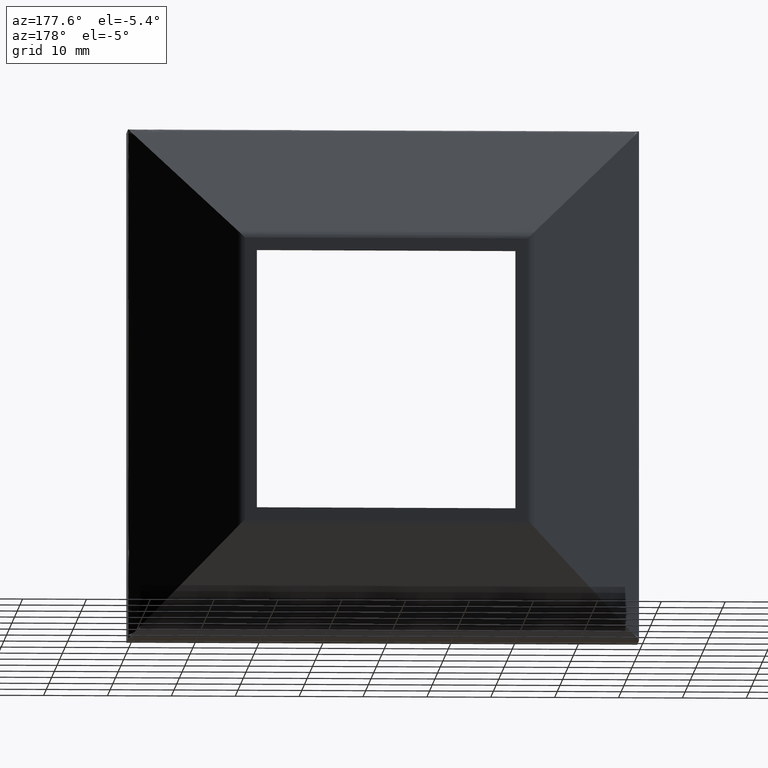
[diagram: clean part render]
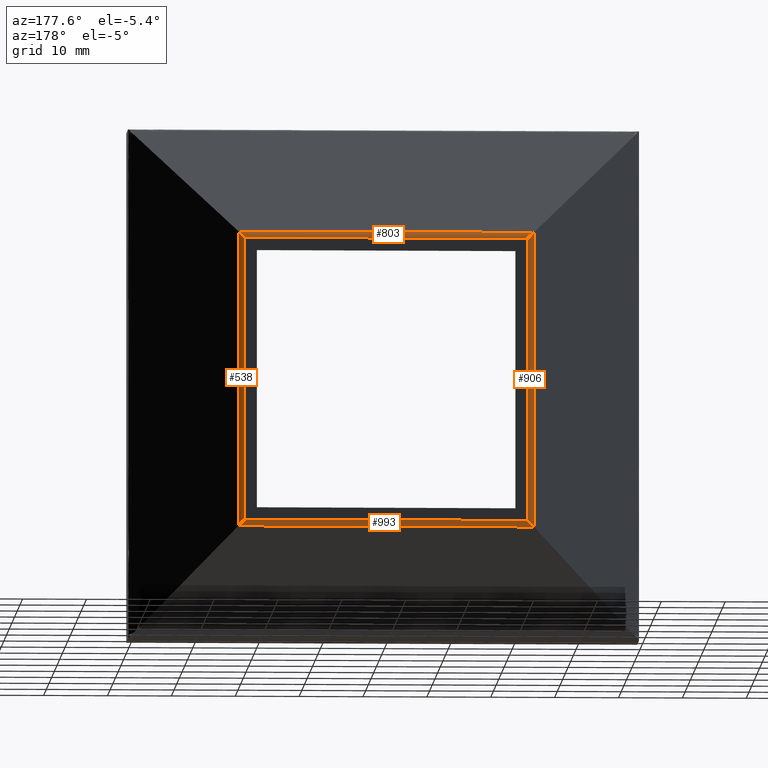
[diagram: same view with one multi-face feature highlighted, each face labeled with its STEP entity id]
A machine part, auxiliary view. The highlighted faces form ONE feature: a constant-radius fillet chain: 4 tangent blend faces with common blend radius 2 mm. The faces share edges in the B-rep.
Their STEP definitions:
[1] entity #906 (Cylinder):
#14 = CARTESIAN_POINT ( 'NONE',  ( -22.83778834245687500, 16.90860752037181000, -22.83778834245686800 ) ) ;
#20 = ORIENTED_EDGE ( 'NONE', *, *, #1084, .F. ) ;
#62 = VECTOR ( 'NONE', #79, 1000.000000000000000 ) ;
#79 = DIRECTION ( 'NONE',  ( -0.0000000000000000000, -0.0000000000000000000, 1.000000000000000000 ) ) ;
#81 = CARTESIAN_POINT ( 'NONE',  ( -23.14359353944890400, 16.73205080756887900, 23.14359353944888300 ) ) ;
#96 = FACE_OUTER_BOUND ( 'NONE', #644, .T. ) ;
#119 = CARTESIAN_POINT ( 'NONE',  ( -22.14359353944891100, 17.00000000000000000, 22.14359353944889000 ) ) ;
#131 = VERTEX_POINT ( 'NONE', #974 ) ;
#160 = CARTESIAN_POINT ( 'NONE',  ( -23.14359353944890400, 16.73205080756887900, -23.14359353944889700 ) ) ;
#169 = CARTESIAN_POINT ( 'NONE',  ( -22.83778834245687500, 16.90860752037181000, 22.83778834245685700 ) ) ;
#189 = CARTESIAN_POINT ( 'NONE',  ( -22.49670696505477700, 17.00000000000000000, -22.49670696505476600 ) ) ;
#194 = AXIS2_PLACEMENT_3D ( 'NONE', #681, #506, #1111 ) ;
#196 = VERTEX_POINT ( 'NONE', #684 ) ;
#199 = EDGE_CURVE ( 'NONE', #996, #131, #771, .T. ) ;
#235 = CARTESIAN_POINT ( 'NONE',  ( -23.14359353944890400, 16.73205080756887900, -23.14359353944889700 ) ) ;
#254 = VECTOR ( 'NONE', #1062, 1000.000000000000000 ) ;
#259 = CARTESIAN_POINT ( 'NONE',  ( -22.14359353944891100, 17.00000000000000000, -22.14359353944890400 ) ) ;
#382 = EDGE_CURVE ( 'NONE', #996, #1076, #442, .T. ) ;
#429 =( BOUNDED_CURVE ( )  B_SPLINE_CURVE ( 3, ( #160, #14, #189, #259 ),
 .UNSPECIFIED., .F., .T. ) 
 B_SPLINE_CURVE_WITH_KNOTS ( ( 4, 4 ),
 ( 4.188790204786394100, 4.712388980384689700 ),
 .UNSPECIFIED. ) 
 CURVE ( )  GEOMETRIC_REPRESENTATION_ITEM ( )  RATIONAL_B_SPLINE_CURVE ( ( 1.000000000000000000, 0.9772838841927123900, 0.9772838841927123900, 1.000000000000000000 ) ) 
 REPRESENTATION_ITEM ( '' )  );
#442 = LINE ( 'NONE', #799, #254 ) ;
#506 = DIRECTION ( 'NONE',  ( 0.0000000000000000000, 0.0000000000000000000, 1.000000000000000000 ) ) ;
#583 = CARTESIAN_POINT ( 'NONE',  ( -22.14359353944891100, 17.00000000000000000, 22.67949192431112200 ) ) ;
#609 = CYLINDRICAL_SURFACE ( 'NONE', #194, 2.000000000000001800 ) ;
#644 = EDGE_LOOP ( 'NONE', ( #1087, #20, #793, #1115 ) ) ;
#681 = CARTESIAN_POINT ( 'NONE',  ( -22.14359353944891100, 15.00000000000000200, 0.0000000000000000000 ) ) ;
#684 = CARTESIAN_POINT ( 'NONE',  ( -22.14359353944891100, 17.00000000000000000, -22.14359353944890400 ) ) ;
#697 = EDGE_CURVE ( 'NONE', #1076, #196, #429, .T. ) ;
#735 = CARTESIAN_POINT ( 'NONE',  ( -23.14359353944890400, 16.73205080756887900, 23.14359353944888300 ) ) ;
#771 =( BOUNDED_CURVE ( )  B_SPLINE_CURVE ( 3, ( #81, #169, #1055, #119 ),
 .UNSPECIFIED., .F., .T. ) 
 B_SPLINE_CURVE_WITH_KNOTS ( ( 4, 4 ),
 ( 1.047197551196601000, 1.570796326794896600 ),
 .UNSPECIFIED. ) 
 CURVE ( )  GEOMETRIC_REPRESENTATION_ITEM ( )  RATIONAL_B_SPLINE_CURVE ( ( 1.000000000000000000, 0.9772838841927123900, 0.9772838841927123900, 1.000000000000000000 ) ) 
 REPRESENTATION_ITEM ( '' )  );
#793 = ORIENTED_EDGE ( 'NONE', *, *, #697, .F. ) ;
#799 = CARTESIAN_POINT ( 'NONE',  ( -23.14359353944890800, 16.73205080756887900, -22.67949192431113700 ) ) ;
#906 = ADVANCED_FACE ( 'NONE', ( #96 ), #609, .T. ) ;
#934 = LINE ( 'NONE', #583, #62 ) ;
#974 = CARTESIAN_POINT ( 'NONE',  ( -22.14359353944891100, 17.00000000000000000, 22.14359353944889000 ) ) ;
#996 = VERTEX_POINT ( 'NONE', #735 ) ;
#1055 = CARTESIAN_POINT ( 'NONE',  ( -22.49670696505477700, 17.00000000000000000, 22.49670696505475200 ) ) ;
#1062 = DIRECTION ( 'NONE',  ( -0.0000000000000000000, -0.0000000000000000000, -1.000000000000000000 ) ) ;
#1076 = VERTEX_POINT ( 'NONE', #235 ) ;
#1084 = EDGE_CURVE ( 'NONE', #196, #131, #934, .T. ) ;
#1087 = ORIENTED_EDGE ( 'NONE', *, *, #199, .T. ) ;
#1111 = DIRECTION ( 'NONE',  ( 1.000000000000000000, 0.0000000000000000000, 0.0000000000000000000 ) ) ;
#1115 = ORIENTED_EDGE ( 'NONE', *, *, #382, .F. ) ;
[2] entity #993 (Cylinder):
#14 = CARTESIAN_POINT ( 'NONE',  ( -22.83778834245687500, 16.90860752037181000, -22.83778834245686800 ) ) ;
#15 = ORIENTED_EDGE ( 'NONE', *, *, #425, .F. ) ;
#85 = CARTESIAN_POINT ( 'NONE',  ( -22.67949192431114400, 17.00000000000000000, -22.14359353944890400 ) ) ;
#86 = EDGE_CURVE ( 'NONE', #175, #461, #749, .T. ) ;
#108 = CARTESIAN_POINT ( 'NONE',  ( 22.14359353944888300, 17.00000000000000000, -22.14359353944890400 ) ) ;
#160 = CARTESIAN_POINT ( 'NONE',  ( -23.14359353944890400, 16.73205080756887900, -23.14359353944889700 ) ) ;
#175 = VERTEX_POINT ( 'NONE', #1098 ) ;
#189 = CARTESIAN_POINT ( 'NONE',  ( -22.49670696505477700, 17.00000000000000000, -22.49670696505476600 ) ) ;
#196 = VERTEX_POINT ( 'NONE', #684 ) ;
#235 = CARTESIAN_POINT ( 'NONE',  ( -23.14359353944890400, 16.73205080756887900, -23.14359353944889700 ) ) ;
#259 = CARTESIAN_POINT ( 'NONE',  ( -22.14359353944891100, 17.00000000000000000, -22.14359353944890400 ) ) ;
#276 = VECTOR ( 'NONE', #342, 1000.000000000000000 ) ;
#310 = ORIENTED_EDGE ( 'NONE', *, *, #86, .T. ) ;
#331 = CARTESIAN_POINT ( 'NONE',  ( 23.14359353944887600, 16.73205080756887900, -23.14359353944889700 ) ) ;
#342 = DIRECTION ( 'NONE',  ( 1.000000000000000000, -0.0000000000000000000, -0.0000000000000000000 ) ) ;
#425 = EDGE_CURVE ( 'NONE', #175, #196, #599, .T. ) ;
#429 =( BOUNDED_CURVE ( )  B_SPLINE_CURVE ( 3, ( #160, #14, #189, #259 ),
 .UNSPECIFIED., .F., .T. ) 
 B_SPLINE_CURVE_WITH_KNOTS ( ( 4, 4 ),
 ( 4.188790204786394100, 4.712388980384689700 ),
 .UNSPECIFIED. ) 
 CURVE ( )  GEOMETRIC_REPRESENTATION_ITEM ( )  RATIONAL_B_SPLINE_CURVE ( ( 1.000000000000000000, 0.9772838841927123900, 0.9772838841927123900, 1.000000000000000000 ) ) 
 REPRESENTATION_ITEM ( '' )  );
#452 = CARTESIAN_POINT ( 'NONE',  ( 22.49670696505474500, 17.00000000000000400, -22.49670696505476600 ) ) ;
#461 = VERTEX_POINT ( 'NONE', #331 ) ;
#500 = EDGE_CURVE ( 'NONE', #1076, #461, #868, .T. ) ;
#593 = CARTESIAN_POINT ( 'NONE',  ( 22.67949192431111500, 16.73205080756887900, -23.14359353944890100 ) ) ;
#599 = LINE ( 'NONE', #85, #815 ) ;
#670 = DIRECTION ( 'NONE',  ( -1.000000000000000000, -0.0000000000000000000, -0.0000000000000000000 ) ) ;
#684 = CARTESIAN_POINT ( 'NONE',  ( -22.14359353944891100, 17.00000000000000000, -22.14359353944890400 ) ) ;
#697 = EDGE_CURVE ( 'NONE', #1076, #196, #429, .T. ) ;
#709 = CARTESIAN_POINT ( 'NONE',  ( 23.14359353944887600, 16.73205080756887900, -23.14359353944889700 ) ) ;
#719 = ORIENTED_EDGE ( 'NONE', *, *, #697, .T. ) ;
#739 = CARTESIAN_POINT ( 'NONE',  ( 0.0000000000000000000, 15.00000000000000200, -22.14359353944890400 ) ) ;
#749 =( BOUNDED_CURVE ( )  B_SPLINE_CURVE ( 3, ( #108, #452, #1056, #709 ),
 .UNSPECIFIED., .F., .T. ) 
 B_SPLINE_CURVE_WITH_KNOTS ( ( 4, 4 ),
 ( 4.712388980384689700, 5.235987755982984400 ),
 .UNSPECIFIED. ) 
 CURVE ( )  GEOMETRIC_REPRESENTATION_ITEM ( )  RATIONAL_B_SPLINE_CURVE ( ( 1.000000000000000000, 0.9772838841927125000, 0.9772838841927125000, 1.000000000000000000 ) ) 
 REPRESENTATION_ITEM ( '' )  );
#810 = DIRECTION ( 'NONE',  ( -1.000000000000000000, 0.0000000000000000000, 0.0000000000000000000 ) ) ;
#815 = VECTOR ( 'NONE', #670, 1000.000000000000000 ) ;
#833 = CYLINDRICAL_SURFACE ( 'NONE', #875, 2.000000000000001800 ) ;
#840 = ORIENTED_EDGE ( 'NONE', *, *, #500, .F. ) ;
#867 = FACE_OUTER_BOUND ( 'NONE', #1037, .T. ) ;
#868 = LINE ( 'NONE', #593, #276 ) ;
#875 = AXIS2_PLACEMENT_3D ( 'NONE', #739, #810, #1080 ) ;
#993 = ADVANCED_FACE ( 'NONE', ( #867 ), #833, .T. ) ;
#1037 = EDGE_LOOP ( 'NONE', ( #310, #840, #719, #15 ) ) ;
#1056 = CARTESIAN_POINT ( 'NONE',  ( 22.83778834245685700, 16.90860752037181000, -22.83778834245687500 ) ) ;
#1076 = VERTEX_POINT ( 'NONE', #235 ) ;
#1080 = DIRECTION ( 'NONE',  ( 0.0000000000000000000, 0.0000000000000000000, 1.000000000000000000 ) ) ;
#1098 = CARTESIAN_POINT ( 'NONE',  ( 22.14359353944888300, 17.00000000000000000, -22.14359353944890400 ) ) ;
[3] entity #538 (Cylinder):
#26 = FACE_OUTER_BOUND ( 'NONE', #399, .T. ) ;
#86 = EDGE_CURVE ( 'NONE', #175, #461, #749, .T. ) ;
#97 = CARTESIAN_POINT ( 'NONE',  ( 22.14359353944888300, 15.00000000000000200, 0.0000000000000000000 ) ) ;
#108 = CARTESIAN_POINT ( 'NONE',  ( 22.14359353944888300, 17.00000000000000000, -22.14359353944890400 ) ) ;
#138 = ORIENTED_EDGE ( 'NONE', *, *, #656, .F. ) ;
#157 = ORIENTED_EDGE ( 'NONE', *, *, #680, .F. ) ;
#164 = CARTESIAN_POINT ( 'NONE',  ( 23.14359353944887900, 16.73205080756887900, 22.67949192431112200 ) ) ;
#175 = VERTEX_POINT ( 'NONE', #1098 ) ;
#185 = DIRECTION ( 'NONE',  ( 0.0000000000000000000, 0.0000000000000000000, -1.000000000000000000 ) ) ;
#222 = CARTESIAN_POINT ( 'NONE',  ( 22.14359353944888300, 17.00000000000000000, 22.14359353944889000 ) ) ;
#241 = ORIENTED_EDGE ( 'NONE', *, *, #1024, .T. ) ;
#267 = DIRECTION ( 'NONE',  ( -1.000000000000000000, 0.0000000000000000000, 0.0000000000000000000 ) ) ;
#331 = CARTESIAN_POINT ( 'NONE',  ( 23.14359353944887600, 16.73205080756887900, -23.14359353944889700 ) ) ;
#399 = EDGE_LOOP ( 'NONE', ( #241, #157, #1026, #138 ) ) ;
#445 = VERTEX_POINT ( 'NONE', #1023 ) ;
#452 = CARTESIAN_POINT ( 'NONE',  ( 22.49670696505474500, 17.00000000000000400, -22.49670696505476600 ) ) ;
#461 = VERTEX_POINT ( 'NONE', #331 ) ;
#468 = CARTESIAN_POINT ( 'NONE',  ( 22.83778834245685700, 16.90860752037181000, 22.83778834245686400 ) ) ;
#470 = CYLINDRICAL_SURFACE ( 'NONE', #821, 2.000000000000001800 ) ;
#488 = CARTESIAN_POINT ( 'NONE',  ( 22.49670696505474500, 17.00000000000000400, 22.49670696505475200 ) ) ;
#509 =( BOUNDED_CURVE ( )  B_SPLINE_CURVE ( 3, ( #222, #488, #468, #911 ),
 .UNSPECIFIED., .F., .F. ) 
 B_SPLINE_CURVE_WITH_KNOTS ( ( 4, 4 ),
 ( 4.712388980384689700, 5.235987755982984400 ),
 .UNSPECIFIED. ) 
 CURVE ( )  GEOMETRIC_REPRESENTATION_ITEM ( )  RATIONAL_B_SPLINE_CURVE ( ( 1.000000000000000000, 0.9772838841927125000, 0.9772838841927125000, 1.000000000000000000 ) ) 
 REPRESENTATION_ITEM ( '' )  );
#538 = ADVANCED_FACE ( 'NONE', ( #26 ), #470, .T. ) ;
#543 = VECTOR ( 'NONE', #671, 1000.000000000000000 ) ;
#656 = EDGE_CURVE ( 'NONE', #903, #175, #774, .T. ) ;
#671 = DIRECTION ( 'NONE',  ( -0.0000000000000000000, -0.0000000000000000000, 1.000000000000000000 ) ) ;
#680 = EDGE_CURVE ( 'NONE', #461, #445, #1003, .T. ) ;
#685 = CARTESIAN_POINT ( 'NONE',  ( 22.14359353944888300, 17.00000000000000000, 22.14359353944889000 ) ) ;
#709 = CARTESIAN_POINT ( 'NONE',  ( 23.14359353944887600, 16.73205080756887900, -23.14359353944889700 ) ) ;
#749 =( BOUNDED_CURVE ( )  B_SPLINE_CURVE ( 3, ( #108, #452, #1056, #709 ),
 .UNSPECIFIED., .F., .T. ) 
 B_SPLINE_CURVE_WITH_KNOTS ( ( 4, 4 ),
 ( 4.712388980384689700, 5.235987755982984400 ),
 .UNSPECIFIED. ) 
 CURVE ( )  GEOMETRIC_REPRESENTATION_ITEM ( )  RATIONAL_B_SPLINE_CURVE ( ( 1.000000000000000000, 0.9772838841927125000, 0.9772838841927125000, 1.000000000000000000 ) ) 
 REPRESENTATION_ITEM ( '' )  );
#774 = LINE ( 'NONE', #1004, #980 ) ;
#821 = AXIS2_PLACEMENT_3D ( 'NONE', #97, #185, #267 ) ;
#903 = VERTEX_POINT ( 'NONE', #685 ) ;
#911 = CARTESIAN_POINT ( 'NONE',  ( 23.14359353944887600, 16.73205080756887900, 23.14359353944888300 ) ) ;
#980 = VECTOR ( 'NONE', #1100, 1000.000000000000000 ) ;
#1003 = LINE ( 'NONE', #164, #543 ) ;
#1004 = CARTESIAN_POINT ( 'NONE',  ( 22.14359353944888300, 17.00000000000000000, -22.67949192431113700 ) ) ;
#1023 = CARTESIAN_POINT ( 'NONE',  ( 23.14359353944887600, 16.73205080756887900, 23.14359353944888300 ) ) ;
#1024 = EDGE_CURVE ( 'NONE', #903, #445, #509, .T. ) ;
#1026 = ORIENTED_EDGE ( 'NONE', *, *, #86, .F. ) ;
#1056 = CARTESIAN_POINT ( 'NONE',  ( 22.83778834245685700, 16.90860752037181000, -22.83778834245687500 ) ) ;
#1098 = CARTESIAN_POINT ( 'NONE',  ( 22.14359353944888300, 17.00000000000000000, -22.14359353944890400 ) ) ;
#1100 = DIRECTION ( 'NONE',  ( -0.0000000000000000000, 0.0000000000000000000, -1.000000000000000000 ) ) ;
[4] entity #803 (Cylinder):
#63 = EDGE_CURVE ( 'NONE', #445, #996, #835, .T. ) ;
#68 = CYLINDRICAL_SURFACE ( 'NONE', #802, 2.000000000000001800 ) ;
#81 = CARTESIAN_POINT ( 'NONE',  ( -23.14359353944890400, 16.73205080756887900, 23.14359353944888300 ) ) ;
#119 = CARTESIAN_POINT ( 'NONE',  ( -22.14359353944891100, 17.00000000000000000, 22.14359353944889000 ) ) ;
#127 = LINE ( 'NONE', #1001, #979 ) ;
#131 = VERTEX_POINT ( 'NONE', #974 ) ;
#137 = ORIENTED_EDGE ( 'NONE', *, *, #1024, .F. ) ;
#169 = CARTESIAN_POINT ( 'NONE',  ( -22.83778834245687500, 16.90860752037181000, 22.83778834245685700 ) ) ;
#199 = EDGE_CURVE ( 'NONE', #996, #131, #771, .T. ) ;
#222 = CARTESIAN_POINT ( 'NONE',  ( 22.14359353944888300, 17.00000000000000000, 22.14359353944889000 ) ) ;
#318 = DIRECTION ( 'NONE',  ( 1.000000000000000000, 0.0000000000000000000, -0.0000000000000000000 ) ) ;
#410 = CARTESIAN_POINT ( 'NONE',  ( 0.0000000000000000000, 15.00000000000000200, 22.14359353944889000 ) ) ;
#440 = FACE_OUTER_BOUND ( 'NONE', #972, .T. ) ;
#445 = VERTEX_POINT ( 'NONE', #1023 ) ;
#458 = VECTOR ( 'NONE', #864, 1000.000000000000000 ) ;
#468 = CARTESIAN_POINT ( 'NONE',  ( 22.83778834245685700, 16.90860752037181000, 22.83778834245686400 ) ) ;
#488 = CARTESIAN_POINT ( 'NONE',  ( 22.49670696505474500, 17.00000000000000400, 22.49670696505475200 ) ) ;
#509 =( BOUNDED_CURVE ( )  B_SPLINE_CURVE ( 3, ( #222, #488, #468, #911 ),
 .UNSPECIFIED., .F., .F. ) 
 B_SPLINE_CURVE_WITH_KNOTS ( ( 4, 4 ),
 ( 4.712388980384689700, 5.235987755982984400 ),
 .UNSPECIFIED. ) 
 CURVE ( )  GEOMETRIC_REPRESENTATION_ITEM ( )  RATIONAL_B_SPLINE_CURVE ( ( 1.000000000000000000, 0.9772838841927125000, 0.9772838841927125000, 1.000000000000000000 ) ) 
 REPRESENTATION_ITEM ( '' )  );
#685 = CARTESIAN_POINT ( 'NONE',  ( 22.14359353944888300, 17.00000000000000000, 22.14359353944889000 ) ) ;
#713 = CARTESIAN_POINT ( 'NONE',  ( -22.67949192431114400, 16.73205080756887900, 23.14359353944888700 ) ) ;
#735 = CARTESIAN_POINT ( 'NONE',  ( -23.14359353944890400, 16.73205080756887900, 23.14359353944888300 ) ) ;
#768 = ORIENTED_EDGE ( 'NONE', *, *, #770, .F. ) ;
#770 = EDGE_CURVE ( 'NONE', #131, #903, #127, .T. ) ;
#771 =( BOUNDED_CURVE ( )  B_SPLINE_CURVE ( 3, ( #81, #169, #1055, #119 ),
 .UNSPECIFIED., .F., .T. ) 
 B_SPLINE_CURVE_WITH_KNOTS ( ( 4, 4 ),
 ( 1.047197551196601000, 1.570796326794896600 ),
 .UNSPECIFIED. ) 
 CURVE ( )  GEOMETRIC_REPRESENTATION_ITEM ( )  RATIONAL_B_SPLINE_CURVE ( ( 1.000000000000000000, 0.9772838841927123900, 0.9772838841927123900, 1.000000000000000000 ) ) 
 REPRESENTATION_ITEM ( '' )  );
#795 = ORIENTED_EDGE ( 'NONE', *, *, #199, .F. ) ;
#802 = AXIS2_PLACEMENT_3D ( 'NONE', #410, #839, #1014 ) ;
#803 = ADVANCED_FACE ( 'NONE', ( #440 ), #68, .T. ) ;
#835 = LINE ( 'NONE', #713, #458 ) ;
#839 = DIRECTION ( 'NONE',  ( 1.000000000000000000, 0.0000000000000000000, -0.0000000000000000000 ) ) ;
#848 = ORIENTED_EDGE ( 'NONE', *, *, #63, .F. ) ;
#864 = DIRECTION ( 'NONE',  ( -1.000000000000000000, -0.0000000000000000000, -0.0000000000000000000 ) ) ;
#903 = VERTEX_POINT ( 'NONE', #685 ) ;
#911 = CARTESIAN_POINT ( 'NONE',  ( 23.14359353944887600, 16.73205080756887900, 23.14359353944888300 ) ) ;
#972 = EDGE_LOOP ( 'NONE', ( #795, #848, #137, #768 ) ) ;
#974 = CARTESIAN_POINT ( 'NONE',  ( -22.14359353944891100, 17.00000000000000000, 22.14359353944889000 ) ) ;
#979 = VECTOR ( 'NONE', #318, 1000.000000000000000 ) ;
#996 = VERTEX_POINT ( 'NONE', #735 ) ;
#1001 = CARTESIAN_POINT ( 'NONE',  ( 22.67949192431111500, 17.00000000000000000, 22.14359353944889000 ) ) ;
#1014 = DIRECTION ( 'NONE',  ( 0.0000000000000000000, 0.0000000000000000000, -1.000000000000000000 ) ) ;
#1023 = CARTESIAN_POINT ( 'NONE',  ( 23.14359353944887600, 16.73205080756887900, 23.14359353944888300 ) ) ;
#1024 = EDGE_CURVE ( 'NONE', #903, #445, #509, .T. ) ;
#1055 = CARTESIAN_POINT ( 'NONE',  ( -22.49670696505477700, 17.00000000000000000, 22.49670696505475200 ) ) ;